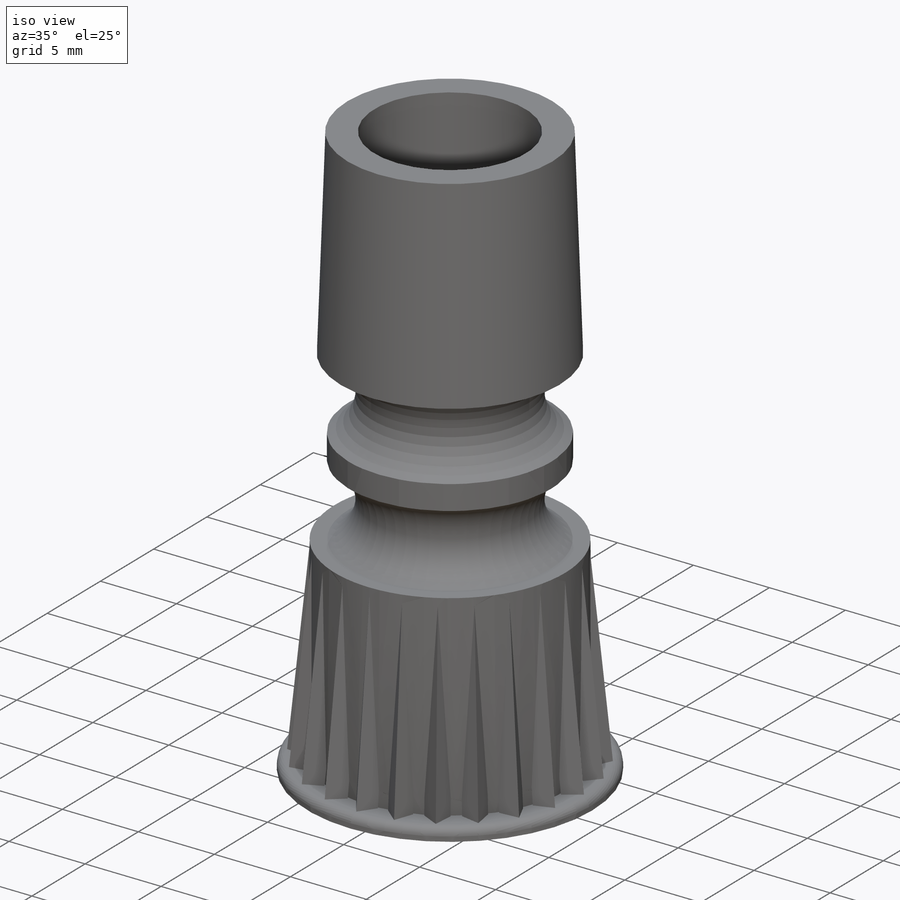
[diagram: iso view]
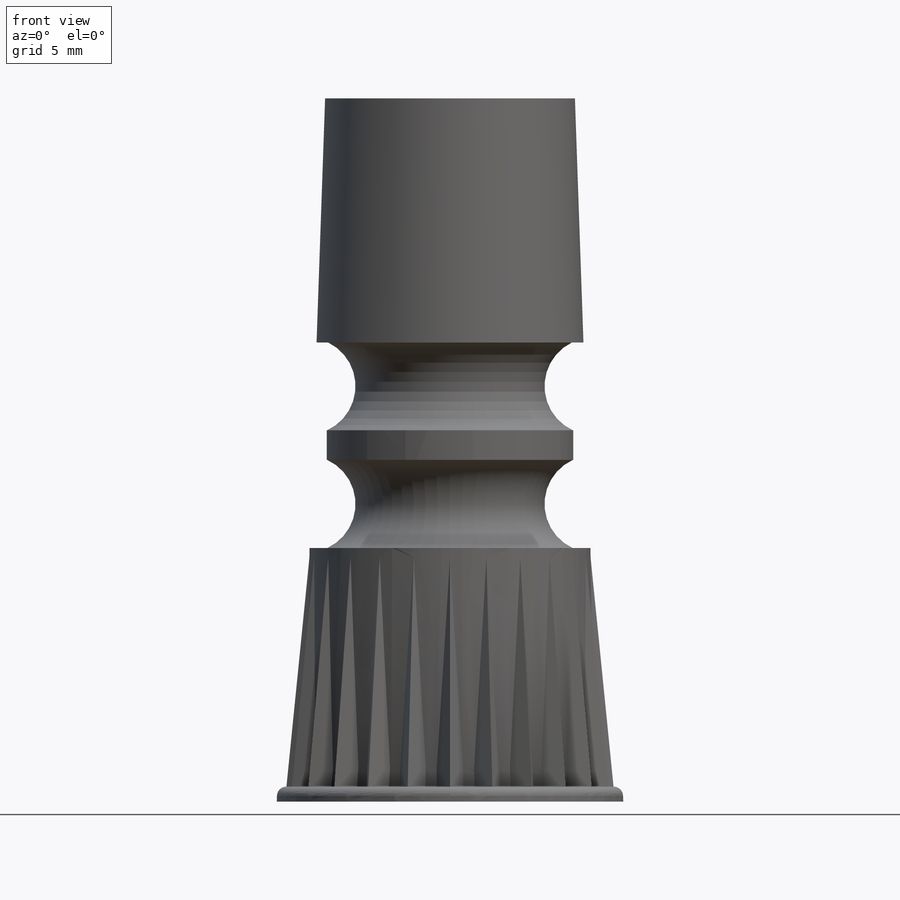
[diagram: front view]
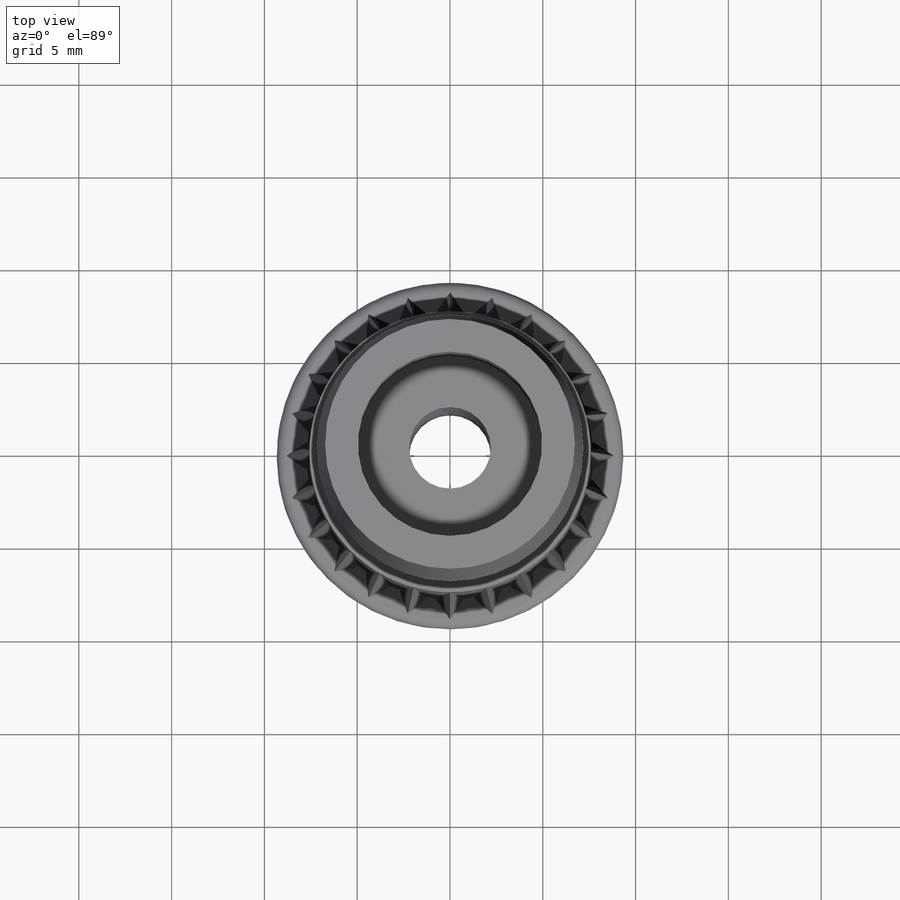
[diagram: top view]
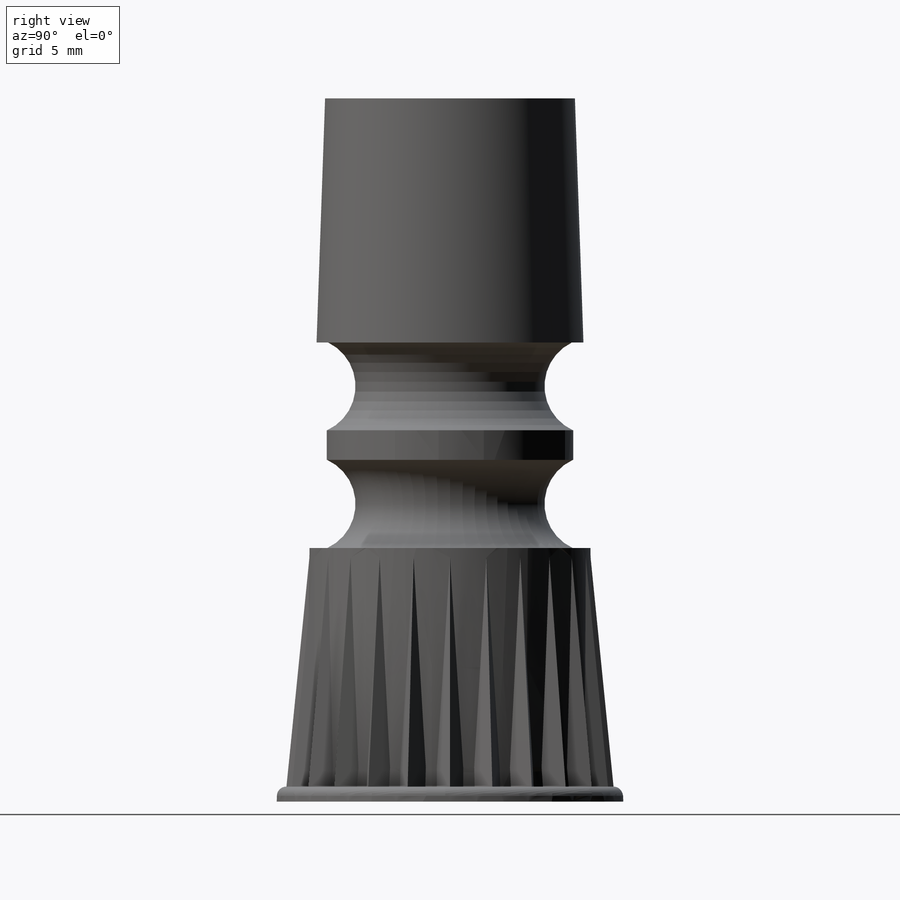
[diagram: right view]
SOLIDWORKS PART (.sldprt)
format: sldprt  version: not decoded by parser v0  size: 400,896 bytes
history: native  units: mm
features: sketch x10, plane x3, extrude x2, cut_extrude x2, material x1, sweep x1, pattern_circular x1, revolve x1, cut_revolve x1, fillet x1 (+12 scaffold rows collapsed)
feature tree (35):
  scaffold x12  (default folders/planes/origin — collapsed)
  material  "CA"
  sketch  "Sketch1"  dims[D1=18.669mm]
  extrude  "Boss-Extrude1"  Depth=0.8128mm
  plane  "Plane1"  Offset=13.6652mm
  sketch  "Sketch2"  dims[D1=15.1384mm]
  sketch  "Sketch3"  dims[D1=15.4686mm]
  sketch  "Sketch4"  dims[c1.D1=0.508mm c1.D2=0.508mm c2.D1=0.508mm]
  plane  "Plane2"
  sketch  "Sketch14"  dims[c1.D1=1.016mm c1.D2=1.016mm c2.D2=70.0deg]
  sweep  "Sweep1"
  sketch  "Sketch7"  dims[c1.D4=~3.874285mm c1.D1=0.762mm c1.D2=0.0254mm c1.D3=1.9812mm c2.D4=10.1854mm c2.D1=13.2334mm c2.D5=4.7498mm c2.D3=1.4478mm c2.D6=4.7498mm c2.D7=1.6002mm]
  pattern_circular  "CirPattern3"  Count=24 Angle=360deg
  revolve  "Revolve1"  Angle=360deg
  sketch  "Sketch19"  dims[c1.D1=6.4008mm c1.D2=~13.072786mm c2.D2=1.0deg c2.D3=1.524mm c2.D4=2.54mm c2.D5=12.1412mm c3.D5=5.0deg c3.D6=3.429mm]
  cut_revolve  "Cut-Revolve1"  Angle=360deg
  fillet  "Fillet1"  Radius=0.508mm
  plane  "Plane3"  Offset=37.8968mm
  sketch  "Sketch20"  dims[D1=13.462mm]
  extrude  "Boss-Extrude2"  Depth=13.1572mm
  sketch  "Sketch21"  dims[D1=9.9314mm]
  cut_extrude  "Cut-Extrude1"  Depth=12.2174mm
  sketch  "Sketch22"  dims[D1=4.3942mm]
  cut_extrude  "Cut-Extrude2"  [1 undecoded]
decode coverage: 17 of 19 modeling features carry decoded parameters
note: ~ marks probable driven/reference dimensions
note: 1 parameter value undecoded
note: suppression state not decoded; provenance and decode notes live in map.json
